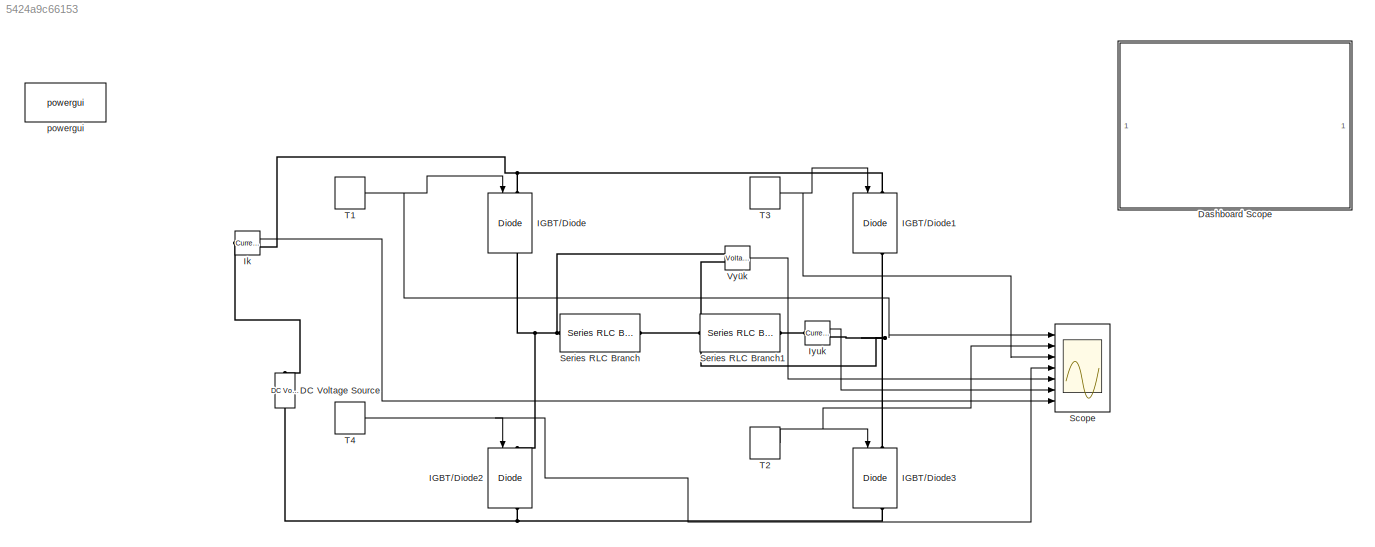
MODEL slx_5424a9c66153
KIND model
CONFIG AbsTol = auto
CONFIG EnableMultiTasking = off
CONFIG FixedStep = auto
CONFIG MaxStep = 1e-4
CONFIG MinStep = auto
CONFIG RelTol = 1e-3
CONFIG SampleTimeConstraint = Unconstrained
CONFIG Solver = VariableStepAuto
CONFIG SolverName = VariableStepAuto
CONFIG StartTime = 0.0
CONFIG StopTime = 1
BLOCK [Reference] DC Voltage Source  REF=powerlib/Electrical
Sources/DC Voltage Source
  Ports = [0, 0, 0, 0, 0, 1, 1]
  SourceBlock = powerlib/Electrical\nSources/DC Voltage Source
  SourceProductBaseCode = PS
  SourceProductName = Simscape Power Systems
  SourceType = DC Voltage Source
BLOCK [SubSystem] Dashboard Scope
  DialogController = hmiCreateDDGDialog
  IsWebBlock = on
  MaskHideContents = on
  Ports = []
  RequestExecContextInheritance = off
  Variant = off
BLOCK [Reference] IGBT//Diode  REF=powerlib/Power
Electronics/IGBT//Diode
  Ports = [1, 1, 0, 0, 0, 1, 1]
  SourceBlock = powerlib/Power\nElectronics/IGBT//Diode
  SourceProductBaseCode = PS
  SourceProductName = Simscape Power Systems
  SourceType = IGBT/Diode
BLOCK [Reference] IGBT//Diode1  REF=powerlib/Power
Electronics/IGBT//Diode
  Ports = [1, 1, 0, 0, 0, 1, 1]
  SourceBlock = powerlib/Power\nElectronics/IGBT//Diode
  SourceProductBaseCode = PS
  SourceProductName = Simscape Power Systems
  SourceType = IGBT/Diode
BLOCK [Reference] IGBT//Diode2  REF=powerlib/Power
Electronics/IGBT//Diode
  Ports = [1, 1, 0, 0, 0, 1, 1]
  SourceBlock = powerlib/Power\nElectronics/IGBT//Diode
  SourceProductBaseCode = PS
  SourceProductName = Simscape Power Systems
  SourceType = IGBT/Diode
BLOCK [Reference] IGBT//Diode3  REF=powerlib/Power
Electronics/IGBT//Diode
  Ports = [1, 1, 0, 0, 0, 1, 1]
  SourceBlock = powerlib/Power\nElectronics/IGBT//Diode
  SourceProductBaseCode = PS
  SourceProductName = Simscape Power Systems
  SourceType = IGBT/Diode
BLOCK [Reference] Ik  REF=powerlib/Measurements/Current Measurement
  Ports = [0, 1, 0, 0, 0, 1, 1]
  SourceBlock = powerlib/Measurements/Current Measurement
  SourceProductBaseCode = PS
  SourceProductName = Simscape Power Systems
  SourceType = Current Measurement
  UserDataPersistent = on
BLOCK [Reference] Iyuk  REF=powerlib/Measurements/Current Measurement
  Ports = [0, 1, 0, 0, 0, 1, 1]
  SourceBlock = powerlib/Measurements/Current Measurement
  SourceProductBaseCode = PS
  SourceProductName = Simscape Power Systems
  SourceType = Current Measurement
  UserDataPersistent = on
BLOCK [Scope] Scope
  NumInputPorts = 7
  Ports = [7]
  ScopeSpecificationString = Simulink.scopes.TimeScopeBlockCfg('CurrentConfiguration', extmgr.ConfigurationSet(extmgr.Configuration('Core','General UI',true),extmgr.Configuration('Core','Source UI',true),extmgr.Configuration('Sources','WiredSimulink',true),extmgr.Configuration('Visuals','Time Domain',true,'SerializedDisplays',{struct('MinYLimReal','-150.00901','MaxYLimReal','150.00675','YLabelReal','','MinYLimMag',' 0.00000',...<+1370ch>
BLOCK [Reference] Series RLC Branch  REF=powerlib/Elements/Series RLC Branch
  Ports = [0, 0, 0, 0, 0, 1, 1]
  SourceBlock = powerlib/Elements/Series RLC Branch
  SourceProductBaseCode = PS
  SourceProductName = Simscape Power Systems
  SourceType = Series RLC Branch
BLOCK [Reference] Series RLC Branch1  REF=powerlib/Elements/Series RLC Branch
  Ports = [0, 0, 0, 0, 0, 1, 1]
  SourceBlock = powerlib/Elements/Series RLC Branch
  SourceProductBaseCode = PS
  SourceProductName = Simscape Power Systems
  SourceType = Series RLC Branch
BLOCK [DiscretePulseGenerator] T1
  Period = 0.01666
  PhaseDelay = 0.01666*151.2/360
  Ports = [0, 1]
  PulseType = Time based
  PulseWidth = 50
BLOCK [DiscretePulseGenerator] T2
  Period = 0.01666
  PhaseDelay = 0.01666*302.4/360
  Ports = [0, 1]
  PulseType = Time based
  PulseWidth = 50
BLOCK [DiscretePulseGenerator] T3
  Period = 0.01666
  PhaseDelay = 0.01666*122.4/360
  Ports = [0, 1]
  PulseType = Time based
  PulseWidth = 50
BLOCK [DiscretePulseGenerator] T4
  Period = 0.01666
  PhaseDelay = 0.01666*331.2/360
  Ports = [0, 1]
  PulseType = Time based
  PulseWidth = 50
BLOCK [Reference] Vyük  REF=powerlib/Measurements/Voltage Measurement
  Ports = [0, 1, 0, 0, 0, 2]
  SourceBlock = powerlib/Measurements/Voltage Measurement
  SourceProductBaseCode = PS
  SourceProductName = Simscape Power Systems
  SourceType = Voltage Measurement
  UserDataPersistent = on
BLOCK [Reference] powergui  REF=powerlib/powergui
  Ports = []
  Priority = 1
  SourceBlock = powerlib/powergui
  SourceProductBaseCode = PS
  SourceProductName = Simscape Power Systems
  SourceType = PSB option menu block
LINE Ik:1 -> Scope:7
LINE Iyuk:1 -> Scope:6
NET T1:1 -> IGBT//Diode:1, Scope:1
NET T2:1 -> IGBT//Diode3:1, Scope:2
NET T3:1 -> IGBT//Diode1:1, Scope:3
NET T4:1 -> IGBT//Diode2:1, Scope:4
LINE Vyük:1 -> Scope:5
PNET net1: DC Voltage Source:LConn1 -- IGBT//Diode2:RConn1 -- IGBT//Diode3:RConn1
PLINE DC Voltage Source:RConn1 -- Ik:LConn1
PNET net2: IGBT//Diode1:LConn1 -- IGBT//Diode:LConn1 -- Ik:RConn1
PNET net3: IGBT//Diode1:RConn1 -- IGBT//Diode3:LConn1 -- Iyuk:RConn1 -- Vyük:LConn2
PNET net4: IGBT//Diode2:LConn1 -- IGBT//Diode:RConn1 -- Series RLC Branch:LConn1 -- Vyük:LConn1
PLINE Iyuk:LConn1 -- Series RLC Branch1:RConn1
PLINE Series RLC Branch1:LConn1 -- Series RLC Branch:RConn1
note: NET lines group one-source signal fan-out (src -> all destinations, sorted); 1:1 wires keep LINE; PNET lines group multi-terminal physical nets as a canonical sorted terminal list (undirected conserving connections); 2-terminal nets keep the pairwise PLINE form
